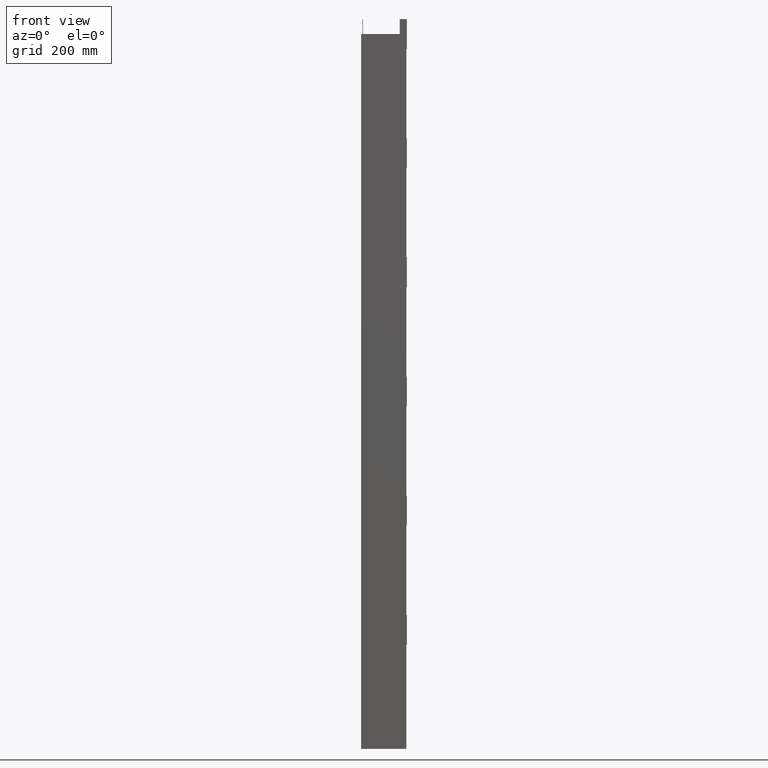
[diagram: clean part render]
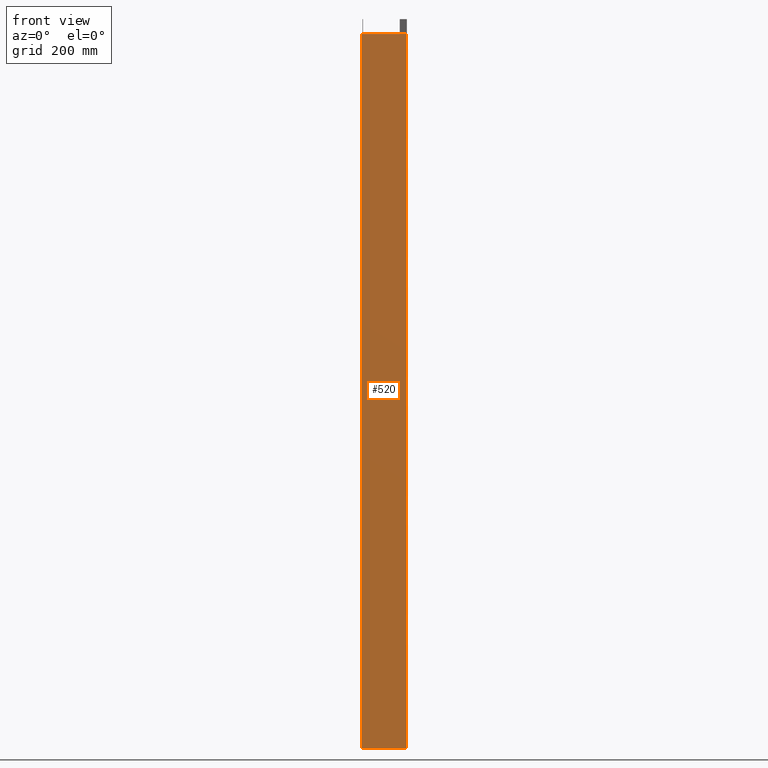
[diagram: same view with one face highlighted and labeled with its STEP entity id]
A machine part, front view. The second image highlights one B-rep face of the part: STEP entity #520.
In plain terms, the highlighted planar face has unit normal (0, -1, 0).
Its self-contained STEP definition (entity closure, byte-faithful):
#282=DIRECTION('',(1.E0,0.E0,0.E0));
#283=VECTOR('',#282,1.5E2);
#284=CARTESIAN_POINT('',(-7.5E1,0.E0,0.E0));
#285=LINE('',#284,#283);
#330=DIRECTION('',(0.E0,0.E0,-1.E0));
#331=VECTOR('',#330,2.4E3);
#332=CARTESIAN_POINT('',(-7.5E1,0.E0,0.E0));
#333=LINE('',#332,#331);
#334=DIRECTION('',(0.E0,0.E0,-1.E0));
#335=VECTOR('',#334,2.4E3);
#336=CARTESIAN_POINT('',(7.5E1,0.E0,0.E0));
#337=LINE('',#336,#335);
#378=DIRECTION('',(1.E0,0.E0,0.E0));
#379=VECTOR('',#378,1.5E2);
#380=CARTESIAN_POINT('',(-7.5E1,0.E0,-2.4E3));
#381=LINE('',#380,#379);
#426=CARTESIAN_POINT('',(-7.5E1,0.E0,0.E0));
#427=CARTESIAN_POINT('',(7.5E1,0.E0,0.E0));
#428=VERTEX_POINT('',#426);
#429=VERTEX_POINT('',#427);
#450=CARTESIAN_POINT('',(-7.5E1,0.E0,-2.4E3));
#451=CARTESIAN_POINT('',(7.5E1,0.E0,-2.4E3));
#452=VERTEX_POINT('',#450);
#453=VERTEX_POINT('',#451);
#506=CARTESIAN_POINT('',(-7.5E1,0.E0,0.E0));
#507=DIRECTION('',(0.E0,-1.E0,0.E0));
#508=DIRECTION('',(1.E0,0.E0,0.E0));
#509=AXIS2_PLACEMENT_3D('',#506,#507,#508);
#510=PLANE('',#509);
#511=ORIENTED_EDGE('',*,*,#479,.T.);
#513=ORIENTED_EDGE('',*,*,#512,.T.);
#515=ORIENTED_EDGE('',*,*,#514,.F.);
#517=ORIENTED_EDGE('',*,*,#516,.F.);
#518=EDGE_LOOP('',(#511,#513,#515,#517));
#519=FACE_OUTER_BOUND('',#518,.F.);
#479=EDGE_CURVE('',#428,#429,#285,.T.);
#512=EDGE_CURVE('',#429,#453,#337,.T.);
#514=EDGE_CURVE('',#452,#453,#381,.T.);
#516=EDGE_CURVE('',#428,#452,#333,.T.);
#520=ADVANCED_FACE('',(#519),#510,.T.);